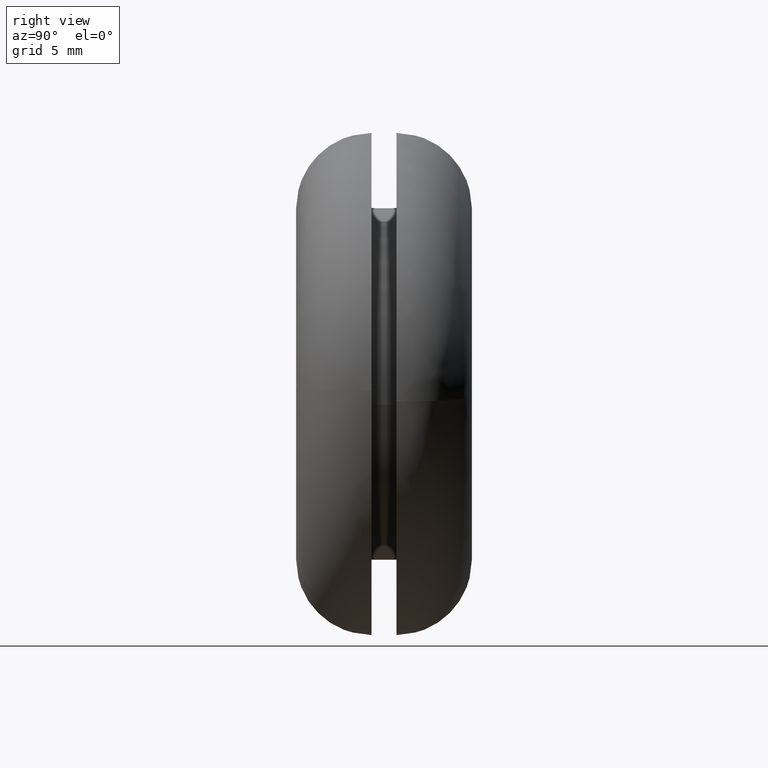
[diagram: clean part render]
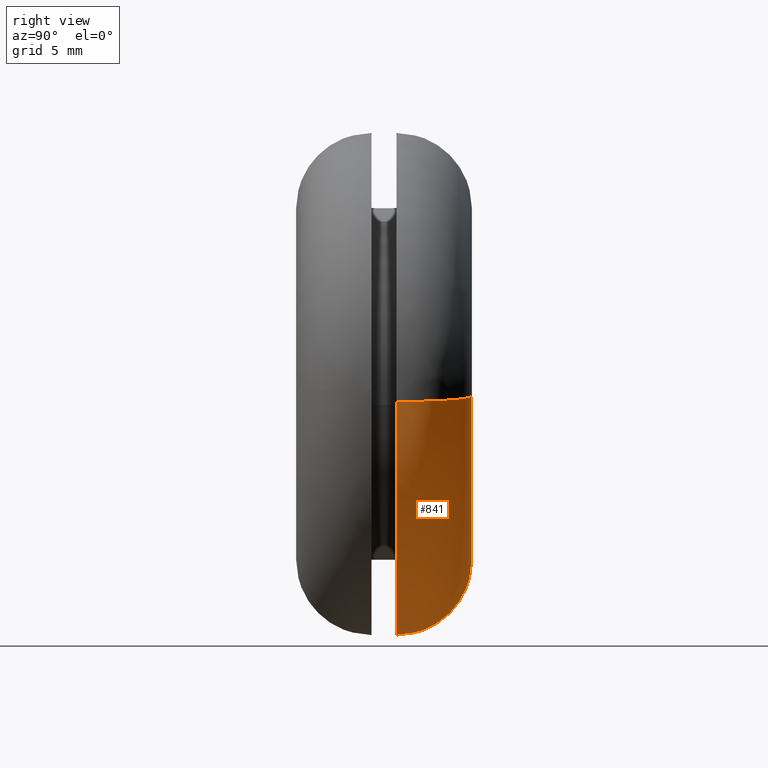
[diagram: same view with one face highlighted and labeled with its STEP entity id]
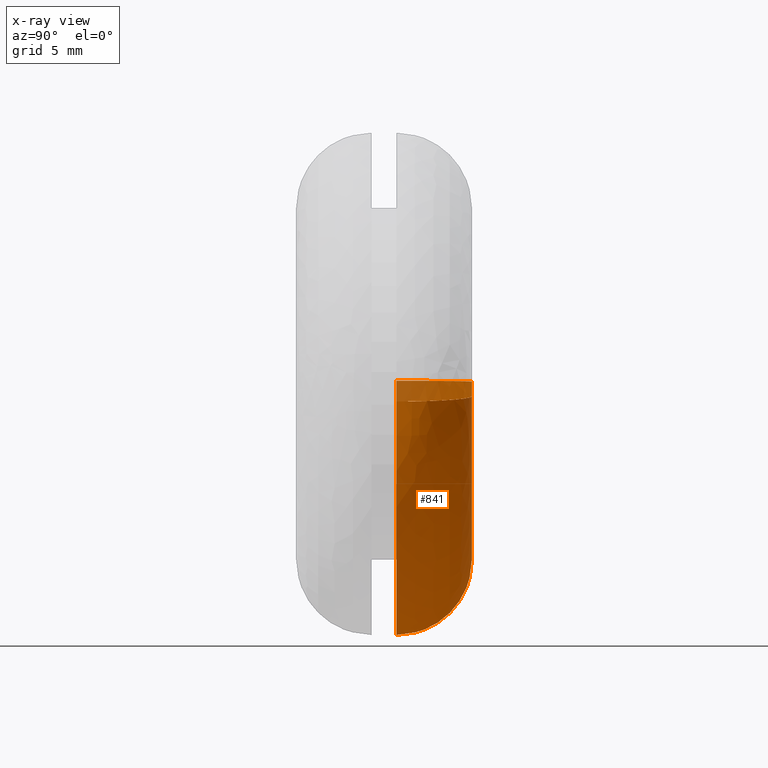
[diagram: x-ray of the same camera — body ghosted, the highlighted face saturated]
A machine part, right view. The second image highlights one B-rep face of the part: STEP entity #841.
The next image is the same camera in x-ray: the body ghosted, the highlighted face saturated — about 8% of this face is hidden behind the body in this view.
In plain terms, the highlighted face is a freeform B-spline surface patch.
Its self-contained STEP definition (entity closure, byte-faithful):
#657=CARTESIAN_POINT('',(9.975656738315763,4.000000000020544,-0.697332517021288));
#658=VERTEX_POINT('',#657);
#676=CARTESIAN_POINT('',(6.982959716952744,7.0,-0.488132761038677));
#677=VERTEX_POINT('',#676);
#678=CARTESIAN_POINT('',(6.982959716952744,7.0,-0.488132761038677));
#679=CARTESIAN_POINT('',(9.975656738363334,6.999999999859430,-0.697332515751550));
#680=CARTESIAN_POINT('',(9.975656738315763,4.000000000020544,-0.697332517021288));
#688=(BOUNDED_CURVE()B_SPLINE_CURVE(2,(#678,#679,#680),.UNSPECIFIED.,.F.,.U.)B_SPLINE_CURVE_WITH_KNOTS((3,3),(-1.734750791609713,-0.265249208355830),.UNSPECIFIED.)CURVE()GEOMETRIC_REPRESENTATION_ITEM()RATIONAL_B_SPLINE_CURVE((0.869031711858393,0.614498216544049,0.869031711870330))REPRESENTATION_ITEM(''));
#689=EDGE_CURVE('',#677,#658,#688,.T.);
#708=CARTESIAN_POINT('',(-6.999447312662011,7.0,0.087962282790522));
#709=VERTEX_POINT('',#708);
#723=CARTESIAN_POINT('',(-9.999210442038091,4.000000000020454,0.125660398838969));
#724=VERTEX_POINT('',#723);
#725=CARTESIAN_POINT('',(-6.999447312662011,7.000000000000001,0.087962282790522));
#726=CARTESIAN_POINT('',(-9.999210441997255,6.999999993439261,0.125660398833005));
#727=CARTESIAN_POINT('',(-9.999210442038091,4.000000000020455,0.125660398838969));
#735=(BOUNDED_CURVE()B_SPLINE_CURVE(2,(#725,#726,#727),.UNSPECIFIED.,.F.,.U.)B_SPLINE_CURVE_WITH_KNOTS((3,3),(-1.734750789385992,-0.265249208355767),.UNSPECIFIED.)CURVE()GEOMETRIC_REPRESENTATION_ITEM()RATIONAL_B_SPLINE_CURVE((0.889029722771115,0.628638946622478,0.889029723571421))REPRESENTATION_ITEM(''));
#736=EDGE_CURVE('',#709,#724,#735,.T.);
#754=CARTESIAN_POINT('',(-6.790852488247961,6.992738098923130,0.085340861364939));
#755=CARTESIAN_POINT('',(-6.876193349612898,6.992738098923130,-6.705511626883019));
#756=CARTESIAN_POINT('',(-0.085340861364940,6.992738098923130,-6.790852488247961));
#757=CARTESIAN_POINT('',(6.327624045770767,6.992738098923130,-6.871444424242037));
#758=CARTESIAN_POINT('',(6.774856252559509,6.992738098923130,-0.473585617304183));
#759=CARTESIAN_POINT('',(-10.231803553201896,7.232611387236871,0.128583403933190));
#760=CARTESIAN_POINT('',(-10.360386957135084,7.232611387236872,-10.103220149268701));
#761=CARTESIAN_POINT('',(-0.128583403933191,7.232611387236871,-10.231803553201896));
#762=CARTESIAN_POINT('',(9.533855477922005,7.232611387236870,-10.353231733020351));
#763=CARTESIAN_POINT('',(10.207701963388507,7.232611387236871,-0.713553270412509));
#764=CARTESIAN_POINT('',(-9.991949108526068,3.791388624474088,0.125569145422014));
#765=CARTESIAN_POINT('',(-10.117518253948083,3.791388624474089,-9.866379963104052));
#766=CARTESIAN_POINT('',(-0.125569145422014,3.791388624474088,-9.991949108526068));
#767=CARTESIAN_POINT('',(9.310362366528073,3.791388624474090,-10.110530762950749));
#768=CARTESIAN_POINT('',(9.968412509372485,3.791388624474089,-0.696826119374914));
#776=(BOUNDED_SURFACE()B_SPLINE_SURFACE(2,2,((#754,#759,#764),(#755,#760,#765),(#756,#761,#766),(#757,#762,#767),(#758,#763,#768)),.UNSPECIFIED.,.F.,.F.,.U.)B_SPLINE_SURFACE_WITH_KNOTS((3,2,3),(3,3),(0.0,16.556510573647390,32.450760724348882),(0.0,5.467121750697482),.UNSPECIFIED.)GEOMETRIC_REPRESENTATION_ITEM()RATIONAL_B_SPLINE_SURFACE(((0.916342095240933,0.601326568744382,0.916342106857795),(0.647951709431553,0.425202094466791,0.647951717645915),(0.916342095240933,0.601326568744382,0.916342106857795),(0.658687324863928,0.432247073437895,0.658687333214390),(0.895729713610772,0.587800209119863,0.895729724966322)))REPRESENTATION_ITEM('')SURFACE());
#777=CARTESIAN_POINT('',(0.0,4.0,-10.0));
#778=VERTEX_POINT('',#777);
#779=CARTESIAN_POINT('',(0.0,4.0,-10.0));
#780=CARTESIAN_POINT('',(9.325368470291839,4.000000000000001,-10.0));
#781=CARTESIAN_POINT('',(9.975656738315763,4.000000000020543,-0.697332517021288));
#789=(BOUNDED_CURVE()B_SPLINE_CURVE(2,(#779,#780,#781),.UNSPECIFIED.,.F.,.U.)B_SPLINE_CURVE_WITH_KNOTS((3,3),(0.0,0.237833686491452),.UNSPECIFIED.)CURVE()GEOMETRIC_REPRESENTATION_ITEM()RATIONAL_B_SPLINE_CURVE((1.0,0.721360504084996,0.972879876294675))REPRESENTATION_ITEM(''));
#790=EDGE_CURVE('',#778,#658,#789,.T.);
#791=ORIENTED_EDGE('',*,*,#790,.F.);
#792=CARTESIAN_POINT('',(-9.999210442038091,4.000000000020453,0.125660398838969));
#793=CARTESIAN_POINT('',(-10.0,4.000000000000000,0.062832679924344));
#794=CARTESIAN_POINT('',(-10.0,4.0,-1.836910E-016));
#795=CARTESIAN_POINT('',(-10.000000000000002,4.000000000000000,-10.000000000000002));
#796=CARTESIAN_POINT('',(0.0,4.0,-10.0));
#804=(BOUNDED_CURVE()B_SPLINE_CURVE(2,(#792,#793,#794,#795,#796),.UNSPECIFIED.,.F.,.U.)B_SPLINE_CURVE_WITH_KNOTS((3,2,3),(0.747784295921537,0.750000000000000,1.0),.UNSPECIFIED.)CURVE()GEOMETRIC_REPRESENTATION_ITEM()RATIONAL_B_SPLINE_CURVE((0.994854295643571,0.997404141202083,1.0,0.707106781186548,1.0))REPRESENTATION_ITEM(''));
#805=EDGE_CURVE('',#724,#778,#804,.T.);
#806=ORIENTED_EDGE('',*,*,#805,.F.);
#807=ORIENTED_EDGE('',*,*,#736,.F.);
#808=CARTESIAN_POINT('',(0.0,7.0,-7.0));
#809=VERTEX_POINT('',#808);
#810=CARTESIAN_POINT('',(-6.999447312662011,7.0,0.087962282790522));
#811=CARTESIAN_POINT('',(-7.000000000000001,7.000000000000001,0.043982879509486));
#812=CARTESIAN_POINT('',(-7.0,7.0,-1.836910E-016));
#813=CARTESIAN_POINT('',(-6.999999999999999,6.999999999999999,-6.999999999999999));
#814=CARTESIAN_POINT('',(0.0,7.0,-7.0));
#822=(BOUNDED_CURVE()B_SPLINE_CURVE(2,(#810,#811,#812,#813,#814),.UNSPECIFIED.,.F.,.U.)B_SPLINE_CURVE_WITH_KNOTS((3,2,3),(0.747784295742539,0.750000000000000,1.0),.UNSPECIFIED.)CURVE()GEOMETRIC_REPRESENTATION_ITEM()RATIONAL_B_SPLINE_CURVE((0.994854295231588,0.997404140992374,1.0,0.707106781186547,1.0))REPRESENTATION_ITEM(''));
#823=EDGE_CURVE('',#709,#809,#822,.T.);
#824=ORIENTED_EDGE('',*,*,#823,.T.);
#825=CARTESIAN_POINT('',(0.0,7.0,-7.0));
#826=CARTESIAN_POINT('',(6.527757930855686,7.000000000000001,-7.000000000000001));
#827=CARTESIAN_POINT('',(6.982959716952744,7.0,-0.488132761038677));
#835=(BOUNDED_CURVE()B_SPLINE_CURVE(2,(#825,#826,#827),.UNSPECIFIED.,.F.,.U.)B_SPLINE_CURVE_WITH_KNOTS((3,3),(0.0,0.237833686534855),.UNSPECIFIED.)CURVE()GEOMETRIC_REPRESENTATION_ITEM()RATIONAL_B_SPLINE_CURVE((1.0,0.721360504034147,0.972879876386475))REPRESENTATION_ITEM(''));
#836=EDGE_CURVE('',#809,#677,#835,.T.);
#837=ORIENTED_EDGE('',*,*,#836,.T.);
#838=ORIENTED_EDGE('',*,*,#689,.T.);
#839=EDGE_LOOP('',(#791,#806,#807,#824,#837,#838));
#840=FACE_OUTER_BOUND('',#839,.T.);
#841=ADVANCED_FACE('',(#840),#776,.T.);